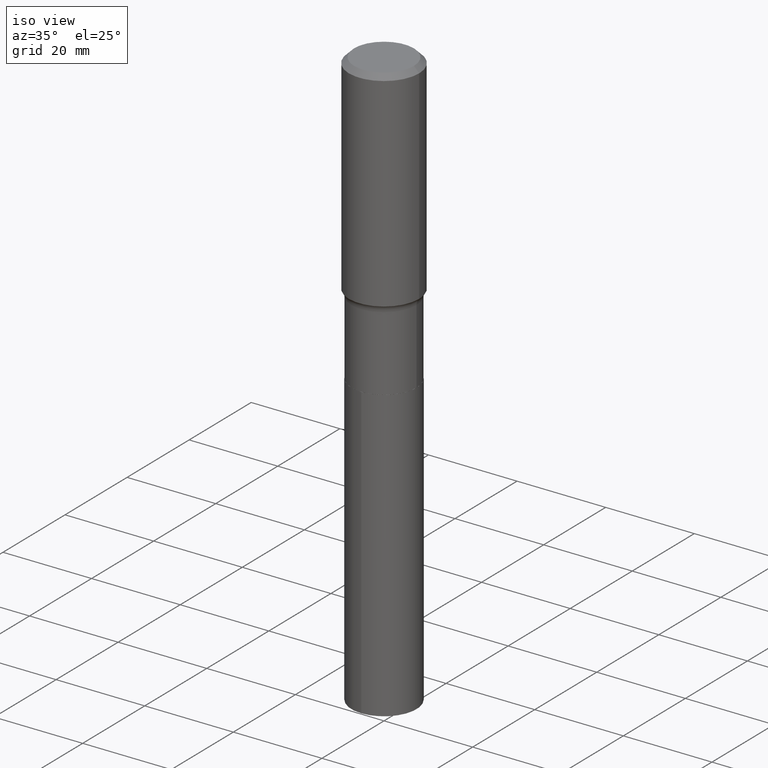
[diagram: clean part render]
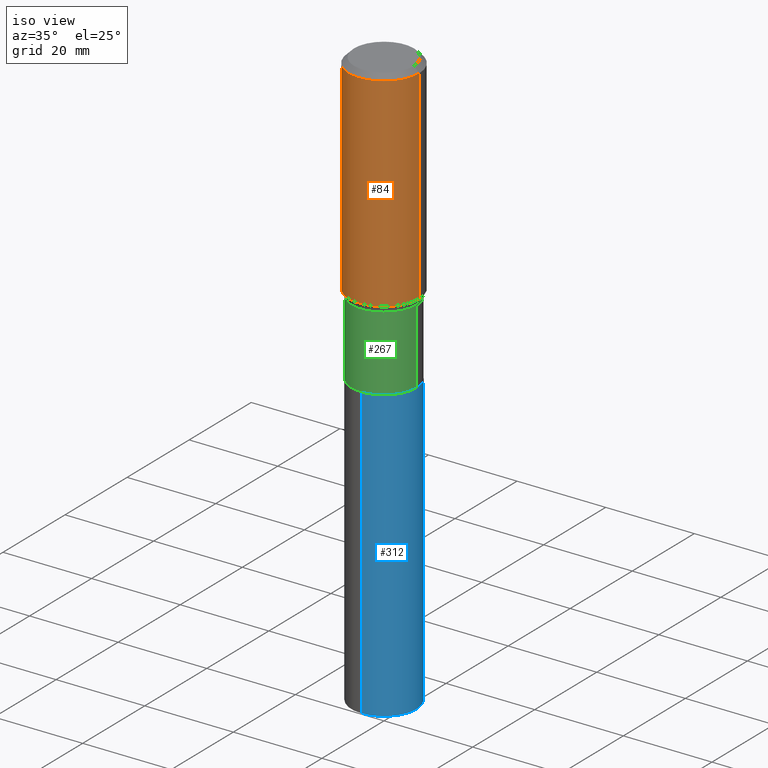
[diagram: same view with three faces highlighted in distinct colors, each labeled with its STEP entity id]
A machine part, iso view with three faces highlighted in distinct colors.
Their STEP definitions:

[orange] entity #84 — the highlighted cylindrical surface (partial cylindrical patch) has radius 7.9375 mm, axis along (-0, 0, 1).
#7 = DIRECTION ( 'NONE',  ( 1.000000000000000000, -6.982962677686266711E-15, 4.876176775795935232E-29 ) ) ;
#10 = EDGE_CURVE ( 'NONE', #36, #463, #171, .T. ) ;
#19 = EDGE_CURVE ( 'NONE', #491, #36, #61, .T. ) ;
#33 = DIRECTION ( 'NONE',  ( -2.445468806185136877E-29, 3.491481338843145188E-15, 1.000000000000000000 ) ) ;
#36 = VERTEX_POINT ( 'NONE', #245 ) ;
#61 = CIRCLE ( 'NONE', #186, 0.3125000000000002776 ) ;
#63 = FACE_OUTER_BOUND ( 'NONE', #259, .T. ) ;
#66 = CYLINDRICAL_SURFACE ( 'NONE', #116, 0.3125000000000001665 ) ;
#78 = CARTESIAN_POINT ( 'NONE',  ( -0.3125000000000000000, -1.104182445818667700E-15, -0.04687500000000027062 ) ) ;
#84 = ADVANCED_FACE ( 'NONE', ( #63 ), #66, .T. ) ;
#89 = EDGE_CURVE ( 'NONE', #106, #463, #161, .T. ) ;
#106 = VERTEX_POINT ( 'NONE', #78 ) ;
#116 = AXIS2_PLACEMENT_3D ( 'NONE', #187, #337, #7 ) ;
#133 = CARTESIAN_POINT ( 'NONE',  ( 4.542575426899541129E-29, -6.485593802379690278E-15, -1.857547892416518964 ) ) ;
#139 = ORIENTED_EDGE ( 'NONE', *, *, #19, .T. ) ;
#150 = DIRECTION ( 'NONE',  ( -2.445468806185136597E-29, 3.491481338843145583E-15, 1.000000000000000000 ) ) ;
#161 = CIRCLE ( 'NONE', #177, 0.3125000000000000000 ) ;
#168 = VECTOR ( 'NONE', #471, 39.37007874015748143 ) ;
#171 = LINE ( 'NONE', #435, #168 ) ;
#177 = AXIS2_PLACEMENT_3D ( 'NONE', #405, #150, #269 ) ;
#186 = AXIS2_PLACEMENT_3D ( 'NONE', #133, #355, #431 ) ;
#187 = CARTESIAN_POINT ( 'NONE',  ( 0.000000000000000000, 0.000000000000000000, 0.000000000000000000 ) ) ;
#232 = EDGE_CURVE ( 'NONE', #491, #106, #367, .T. ) ;
#239 = ORIENTED_EDGE ( 'NONE', *, *, #89, .F. ) ;
#245 = CARTESIAN_POINT ( 'NONE',  ( 0.3125000000000003331, -8.667769639156650991E-15, -1.857547892416518964 ) ) ;
#254 = CARTESIAN_POINT ( 'NONE',  ( 0.3125000000000000000, -2.345839024535231998E-15, -0.04687500000000027062 ) ) ;
#259 = EDGE_LOOP ( 'NONE', ( #454, #139, #263, #239 ) ) ;
#263 = ORIENTED_EDGE ( 'NONE', *, *, #10, .T. ) ;
#269 = DIRECTION ( 'NONE',  ( 1.000000000000000000, -6.982962677686266711E-15, 0.000000000000000000 ) ) ;
#337 = DIRECTION ( 'NONE',  ( -2.445468806185136597E-29, 3.491481338843145583E-15, 1.000000000000000000 ) ) ;
#355 = DIRECTION ( 'NONE',  ( -2.445468806185136597E-29, 3.491481338843145583E-15, 1.000000000000000000 ) ) ;
#367 = LINE ( 'NONE', #377, #394 ) ;
#377 = CARTESIAN_POINT ( 'NONE',  ( -0.3125000000000001665, 2.220446049250314264E-15, -1.537167215704658792E-29 ) ) ;
#394 = VECTOR ( 'NONE', #33, 39.37007874015748143 ) ;
#398 = CARTESIAN_POINT ( 'NONE',  ( -0.3125000000000003331, -4.265147753129375619E-15, -1.857547892416518964 ) ) ;
#405 = CARTESIAN_POINT ( 'NONE',  ( 1.146313502899289261E-30, -1.636631877582734044E-16, -0.04687500000000027062 ) ) ;
#431 = DIRECTION ( 'NONE',  ( 1.000000000000000000, -6.982962677686265922E-15, 0.000000000000000000 ) ) ;
#435 = CARTESIAN_POINT ( 'NONE',  ( 0.3125000000000001665, -2.182175836776959530E-15, 1.523805242436230636E-29 ) ) ;
#454 = ORIENTED_EDGE ( 'NONE', *, *, #232, .F. ) ;
#463 = VERTEX_POINT ( 'NONE', #254 ) ;
#471 = DIRECTION ( 'NONE',  ( -2.445468806185136877E-29, 3.491481338843145188E-15, 1.000000000000000000 ) ) ;
#491 = VERTEX_POINT ( 'NONE', #398 ) ;

[blue] entity #312 — the highlighted cylindrical surface (partial cylindrical patch) has radius 7.3419 mm, axis along (-0, 0, 1).
#15 = DIRECTION ( 'NONE',  ( -2.445458499673719709E-29, 3.491496098354104779E-15, 1.000000000000000000 ) ) ;
#16 = AXIS2_PLACEMENT_3D ( 'NONE', #202, #379, #125 ) ;
#44 = VECTOR ( 'NONE', #289, 39.37007874015748143 ) ;
#80 = CARTESIAN_POINT ( 'NONE',  ( 2.053823777714632509E-15, 0.2890499999999909808, -2.578100000000000946 ) ) ;
#87 = CYLINDRICAL_SURFACE ( 'NONE', #16, 0.2890499999999999736 ) ;
#96 = DIRECTION ( 'NONE',  ( -6.982962677686265922E-15, -1.000000000000000000, 3.780450432332487407E-15 ) ) ;
#99 = EDGE_CURVE ( 'NONE', #389, #465, #153, .T. ) ;
#112 = DIRECTION ( 'NONE',  ( -2.445458499673719429E-29, 3.491496098354104779E-15, 1.000000000000000000 ) ) ;
#125 = DIRECTION ( 'NONE',  ( -6.982962677686265922E-15, -1.000000000000000000, 3.780450432332487407E-15 ) ) ;
#127 = ORIENTED_EDGE ( 'NONE', *, *, #99, .T. ) ;
#131 = DIRECTION ( 'NONE',  ( -6.982962677686265922E-15, -1.000000000000000000, 3.780450432332487407E-15 ) ) ;
#153 = LINE ( 'NONE', #80, #349 ) ;
#200 = CARTESIAN_POINT ( 'NONE',  ( -2.018425361985088389E-15, -0.2890500000000179592, -5.158862885074531057 ) ) ;
#202 = CARTESIAN_POINT ( 'NONE',  ( 6.304663129225901433E-29, -9.001388039671514055E-15, -2.578100000000000058 ) ) ;
#206 = CARTESIAN_POINT ( 'NONE',  ( 2.053823777714695223E-15, 0.2890499999999819325, -5.158862885074533722 ) ) ;
#226 = EDGE_CURVE ( 'NONE', #256, #448, #342, .T. ) ;
#236 = FACE_OUTER_BOUND ( 'NONE', #334, .T. ) ;
#251 = ORIENTED_EDGE ( 'NONE', *, *, #339, .F. ) ;
#253 = CARTESIAN_POINT ( 'NONE',  ( 2.053823777714696012E-15, 0.2890499999999909808, -2.578100000000000946 ) ) ;
#256 = VERTEX_POINT ( 'NONE', #200 ) ;
#258 = AXIS2_PLACEMENT_3D ( 'NONE', #271, #15, #131 ) ;
#271 = CARTESIAN_POINT ( 'NONE',  ( 6.304663129225901433E-29, -9.001388039671514055E-15, -2.578100000000000058 ) ) ;
#280 = ORIENTED_EDGE ( 'NONE', *, *, #226, .F. ) ;
#289 = DIRECTION ( 'NONE',  ( -2.445458499673719429E-29, 3.491496098354104779E-15, 1.000000000000000000 ) ) ;
#312 = ADVANCED_FACE ( 'NONE', ( #236 ), #87, .T. ) ;
#315 = CARTESIAN_POINT ( 'NONE',  ( 1.261581166217388474E-28, -1.801211158368632694E-14, -5.158862885074532834 ) ) ;
#328 = CARTESIAN_POINT ( 'NONE',  ( -2.018425361985152287E-15, -0.2890500000000090219, -2.578099999999998726 ) ) ;
#334 = EDGE_LOOP ( 'NONE', ( #418, #127, #251, #280 ) ) ;
#339 = EDGE_CURVE ( 'NONE', #448, #465, #475, .T. ) ;
#342 = LINE ( 'NONE', #364, #44 ) ;
#344 = AXIS2_PLACEMENT_3D ( 'NONE', #315, #473, #96 ) ;
#349 = VECTOR ( 'NONE', #112, 39.37007874015748143 ) ;
#364 = CARTESIAN_POINT ( 'NONE',  ( -2.018425361985152287E-15, -0.2890500000000090219, -2.578099999999998726 ) ) ;
#379 = DIRECTION ( 'NONE',  ( -2.445458499673719709E-29, 3.491496098354104779E-15, 1.000000000000000000 ) ) ;
#389 = VERTEX_POINT ( 'NONE', #206 ) ;
#418 = ORIENTED_EDGE ( 'NONE', *, *, #421, .T. ) ;
#421 = EDGE_CURVE ( 'NONE', #256, #389, #425, .T. ) ;
#425 = CIRCLE ( 'NONE', #344, 0.2890499999999999736 ) ;
#448 = VERTEX_POINT ( 'NONE', #328 ) ;
#465 = VERTEX_POINT ( 'NONE', #253 ) ;
#473 = DIRECTION ( 'NONE',  ( -2.445458499673719709E-29, 3.491496098354104779E-15, 1.000000000000000000 ) ) ;
#475 = CIRCLE ( 'NONE', #258, 0.2890499999999999736 ) ;

[green] entity #267 — the highlighted cylindrical surface (partial cylindrical patch) has radius 7.3419 mm, axis along (-0, 0, 1).
#24 = DIRECTION ( 'NONE',  ( -2.445468806185136597E-29, 3.491481338843145583E-15, 1.000000000000000000 ) ) ;
#35 = CIRCLE ( 'NONE', #234, 0.2890499999999999181 ) ;
#42 = DIRECTION ( 'NONE',  ( -2.445468806185136877E-29, 3.491481338843145188E-15, 1.000000000000000000 ) ) ;
#43 = CARTESIAN_POINT ( 'NONE',  ( 0.000000000000000000, 0.000000000000000000, 0.000000000000000000 ) ) ;
#46 = ORIENTED_EDGE ( 'NONE', *, *, #276, .T. ) ;
#50 = EDGE_CURVE ( 'NONE', #247, #427, #35, .T. ) ;
#51 = ORIENTED_EDGE ( 'NONE', *, *, #193, .T. ) ;
#75 = VECTOR ( 'NONE', #266, 39.37007874015748143 ) ;
#83 = VERTEX_POINT ( 'NONE', #286 ) ;
#95 = EDGE_CURVE ( 'NONE', #83, #247, #302, .T. ) ;
#113 = CARTESIAN_POINT ( 'NONE',  ( 6.303440394822808632E-29, -8.999642299002091763E-15, -2.577599999999999891 ) ) ;
#121 = CARTESIAN_POINT ( 'NONE',  ( -0.2890499999999999736, 2.053823777714569400E-15, -1.421818187838180369E-29 ) ) ;
#181 = CIRCLE ( 'NONE', #250, 0.2890499999999999736 ) ;
#188 = CARTESIAN_POINT ( 'NONE',  ( 0.2890499999999999736, -1.101806766098730598E-14, -2.577599999999999891 ) ) ;
#192 = DIRECTION ( 'NONE',  ( 1.000000000000000000, -6.982962677686265922E-15, 4.876176775795935232E-29 ) ) ;
#193 = EDGE_CURVE ( 'NONE', #305, #427, #457, .T. ) ;
#198 = DIRECTION ( 'NONE',  ( -2.445468806185136597E-29, 3.491481338843145583E-15, 1.000000000000000000 ) ) ;
#209 = DIRECTION ( 'NONE',  ( 1.000000000000000000, -6.982962677686269077E-15, 0.000000000000000000 ) ) ;
#225 = CARTESIAN_POINT ( 'NONE',  ( 0.2890499999999999736, -2.018425361985215001E-15, 1.409458897043814988E-29 ) ) ;
#233 = DIRECTION ( 'NONE',  ( 1.000000000000000000, -6.982962677686267499E-15, 0.000000000000000000 ) ) ;
#234 = AXIS2_PLACEMENT_3D ( 'NONE', #317, #24, #209 ) ;
#247 = VERTEX_POINT ( 'NONE', #345 ) ;
#250 = AXIS2_PLACEMENT_3D ( 'NONE', #113, #262, #233 ) ;
#262 = DIRECTION ( 'NONE',  ( -2.445468806185136597E-29, 3.491481338843145583E-15, 1.000000000000000000 ) ) ;
#266 = DIRECTION ( 'NONE',  ( -2.445468806185136877E-29, 3.491481338843145188E-15, 1.000000000000000000 ) ) ;
#267 = ADVANCED_FACE ( 'NONE', ( #374 ), #450, .T. ) ;
#276 = EDGE_CURVE ( 'NONE', #83, #305, #181, .T. ) ;
#286 = CARTESIAN_POINT ( 'NONE',  ( -0.2890500000000000291, -5.786122994590770211E-15, -2.577599999999999891 ) ) ;
#302 = LINE ( 'NONE', #121, #310 ) ;
#305 = VERTEX_POINT ( 'NONE', #188 ) ;
#310 = VECTOR ( 'NONE', #42, 39.37007874015748143 ) ;
#317 = CARTESIAN_POINT ( 'NONE',  ( 4.678915466874022448E-29, -6.680251245608591402E-15, -1.913300000000000001 ) ) ;
#338 = AXIS2_PLACEMENT_3D ( 'NONE', #43, #198, #192 ) ;
#345 = CARTESIAN_POINT ( 'NONE',  ( -0.2890499999999999181, -5.786122994590770999E-15, -1.913300000000000001 ) ) ;
#360 = EDGE_LOOP ( 'NONE', ( #365, #46, #51, #482 ) ) ;
#365 = ORIENTED_EDGE ( 'NONE', *, *, #95, .F. ) ;
#374 = FACE_OUTER_BOUND ( 'NONE', #360, .T. ) ;
#419 = CARTESIAN_POINT ( 'NONE',  ( 0.2890499999999999181, -8.698676607593807193E-15, -1.913300000000000001 ) ) ;
#427 = VERTEX_POINT ( 'NONE', #419 ) ;
#450 = CYLINDRICAL_SURFACE ( 'NONE', #338, 0.2890499999999999736 ) ;
#457 = LINE ( 'NONE', #225, #75 ) ;
#482 = ORIENTED_EDGE ( 'NONE', *, *, #50, .F. ) ;